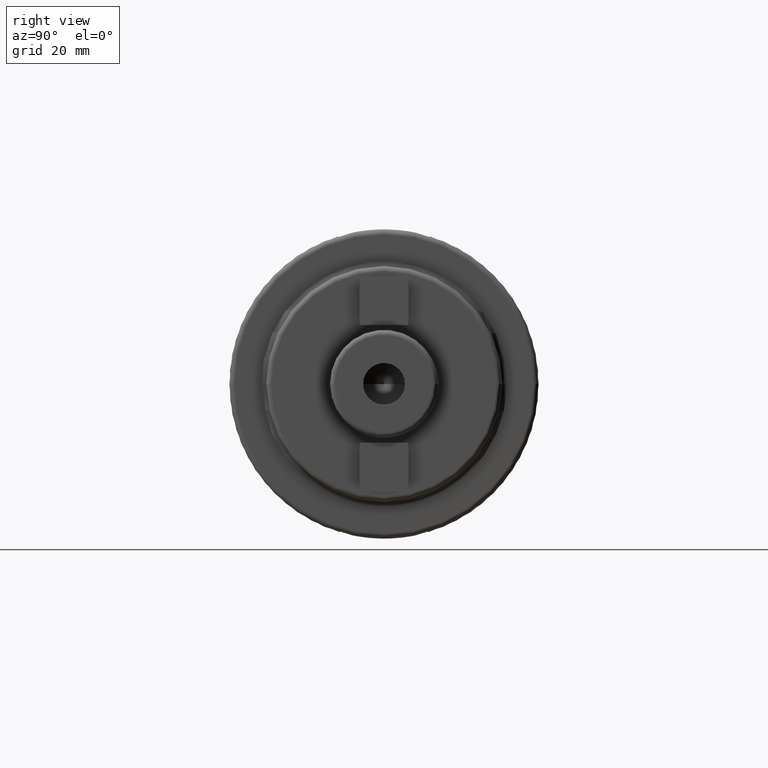
[diagram: clean part render]
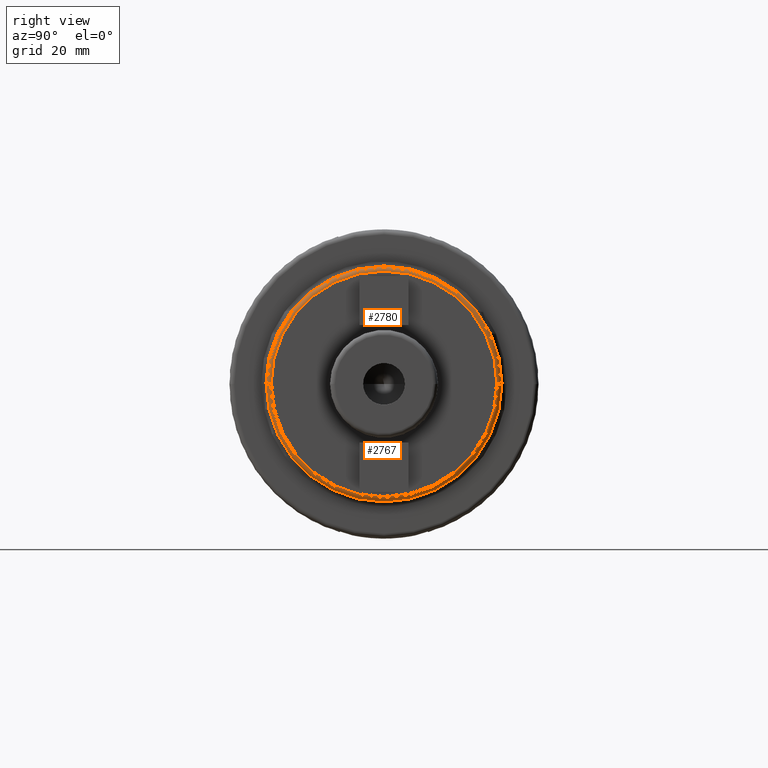
[diagram: same view with one multi-face feature highlighted, each face labeled with its STEP entity id]
A machine part, right view. The highlighted faces form ONE feature: a constant-radius fillet chain: 2 tangent blend faces with common blend radius 1 mm. The faces share edges in the B-rep.
Their STEP definitions:
[1] entity #2767 (Torus):
#870=CARTESIAN_POINT('',(3.4E1,0.E0,0.E0));
#871=DIRECTION('',(-1.E0,0.E0,0.E0));
#872=DIRECTION('',(0.E0,1.E0,0.E0));
#873=AXIS2_PLACEMENT_3D('',#870,#871,#872);
#884=CARTESIAN_POINT('',(3.4E1,2.3E1,9.604039785671E-12));
#885=DIRECTION('',(0.E0,4.175670226259E-13,-1.E0));
#886=DIRECTION('',(0.E0,1.E0,4.175670226259E-13));
#887=AXIS2_PLACEMENT_3D('',#884,#885,#886);
#889=CARTESIAN_POINT('',(3.4E1,-2.3E1,-9.621331509280E-12));
#890=DIRECTION('',(0.E0,-4.183190252527E-13,1.E0));
#891=DIRECTION('',(0.E0,-1.E0,-4.183190252527E-13));
#892=AXIS2_PLACEMENT_3D('',#889,#890,#891);
#904=CARTESIAN_POINT('',(3.5E1,0.E0,0.E0));
#905=DIRECTION('',(-1.E0,0.E0,0.E0));
#906=DIRECTION('',(0.E0,1.E0,0.E0));
#907=AXIS2_PLACEMENT_3D('',#904,#905,#906);
#1535=CARTESIAN_POINT('',(3.4E1,-2.4E1,2.894403728312E-13));
#1536=VERTEX_POINT('',#1535);
#1537=CARTESIAN_POINT('',(3.4E1,2.4E1,-2.955567162917E-13));
#1538=VERTEX_POINT('',#1537);
#1543=CARTESIAN_POINT('',(3.5E1,2.3E1,0.E0));
#1544=CARTESIAN_POINT('',(3.5E1,-2.3E1,0.E0));
#1545=VERTEX_POINT('',#1543);
#1546=VERTEX_POINT('',#1544);
#2753=CARTESIAN_POINT('',(3.4E1,0.E0,0.E0));
#2754=DIRECTION('',(1.E0,0.E0,0.E0));
#2755=DIRECTION('',(0.E0,9.999810241799E-1,6.160461033104E-3));
#2756=AXIS2_PLACEMENT_3D('',#2753,#2754,#2755);
#2757=TOROIDAL_SURFACE('',#2756,2.3E1,1.E0);
#2758=ORIENTED_EDGE('',*,*,#2746,.T.);
#2760=ORIENTED_EDGE('',*,*,#2759,.T.);
#2762=ORIENTED_EDGE('',*,*,#2761,.F.);
#2764=ORIENTED_EDGE('',*,*,#2763,.F.);
#2765=EDGE_LOOP('',(#2758,#2760,#2762,#2764));
#2766=FACE_OUTER_BOUND('',#2765,.F.);
#2767=ADVANCED_FACE('',(#2766),#2757,.T.);
#874=CIRCLE('',#873,2.4E1);
#888=CIRCLE('',#887,1.E0);
#893=CIRCLE('',#892,1.E0);
#908=CIRCLE('',#907,2.3E1);
#2746=EDGE_CURVE('',#1538,#1536,#874,.T.);
#2759=EDGE_CURVE('',#1536,#1546,#893,.T.);
#2761=EDGE_CURVE('',#1545,#1546,#908,.T.);
#2763=EDGE_CURVE('',#1538,#1545,#888,.T.);
[2] entity #2780 (Torus):
#861=CARTESIAN_POINT('',(3.4E1,0.E0,0.E0));
#862=DIRECTION('',(-1.E0,0.E0,0.E0));
#863=DIRECTION('',(0.E0,-1.E0,0.E0));
#864=AXIS2_PLACEMENT_3D('',#861,#862,#863);
#884=CARTESIAN_POINT('',(3.4E1,2.3E1,9.604039785671E-12));
#885=DIRECTION('',(0.E0,4.175670226259E-13,-1.E0));
#886=DIRECTION('',(0.E0,1.E0,4.175670226259E-13));
#887=AXIS2_PLACEMENT_3D('',#884,#885,#886);
#889=CARTESIAN_POINT('',(3.4E1,-2.3E1,-9.621331509280E-12));
#890=DIRECTION('',(0.E0,-4.183190252527E-13,1.E0));
#891=DIRECTION('',(0.E0,-1.E0,-4.183190252527E-13));
#892=AXIS2_PLACEMENT_3D('',#889,#890,#891);
#909=CARTESIAN_POINT('',(3.5E1,0.E0,0.E0));
#910=DIRECTION('',(-1.E0,0.E0,0.E0));
#911=DIRECTION('',(0.E0,-1.E0,0.E0));
#912=AXIS2_PLACEMENT_3D('',#909,#910,#911);
#1535=CARTESIAN_POINT('',(3.4E1,-2.4E1,2.894403728312E-13));
#1536=VERTEX_POINT('',#1535);
#1537=CARTESIAN_POINT('',(3.4E1,2.4E1,-2.955567162917E-13));
#1538=VERTEX_POINT('',#1537);
#1543=CARTESIAN_POINT('',(3.5E1,2.3E1,0.E0));
#1544=CARTESIAN_POINT('',(3.5E1,-2.3E1,0.E0));
#1545=VERTEX_POINT('',#1543);
#1546=VERTEX_POINT('',#1544);
#2768=CARTESIAN_POINT('',(3.4E1,0.E0,0.E0));
#2769=DIRECTION('',(1.E0,0.E0,0.E0));
#2770=DIRECTION('',(0.E0,-9.999810241799E-1,-6.160461033104E-3));
#2771=AXIS2_PLACEMENT_3D('',#2768,#2769,#2770);
#2772=TOROIDAL_SURFACE('',#2771,2.3E1,1.E0);
#2773=ORIENTED_EDGE('',*,*,#2735,.T.);
#2774=ORIENTED_EDGE('',*,*,#2763,.T.);
#2776=ORIENTED_EDGE('',*,*,#2775,.F.);
#2777=ORIENTED_EDGE('',*,*,#2759,.F.);
#2778=EDGE_LOOP('',(#2773,#2774,#2776,#2777));
#2779=FACE_OUTER_BOUND('',#2778,.F.);
#2780=ADVANCED_FACE('',(#2779),#2772,.T.);
#865=CIRCLE('',#864,2.4E1);
#888=CIRCLE('',#887,1.E0);
#893=CIRCLE('',#892,1.E0);
#913=CIRCLE('',#912,2.3E1);
#2735=EDGE_CURVE('',#1536,#1538,#865,.T.);
#2759=EDGE_CURVE('',#1536,#1546,#893,.T.);
#2763=EDGE_CURVE('',#1538,#1545,#888,.T.);
#2775=EDGE_CURVE('',#1546,#1545,#913,.T.);